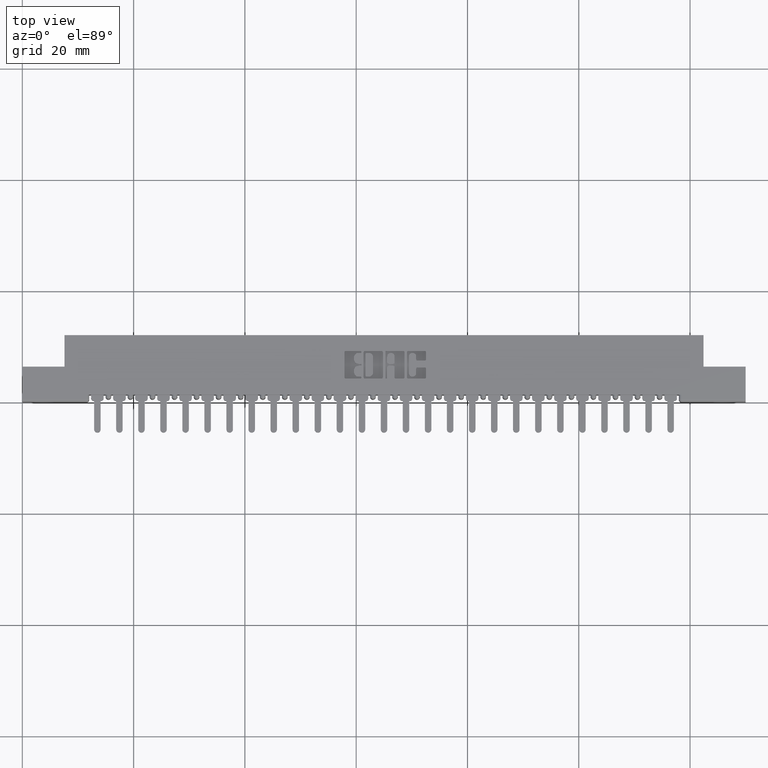
[diagram: clean part render]
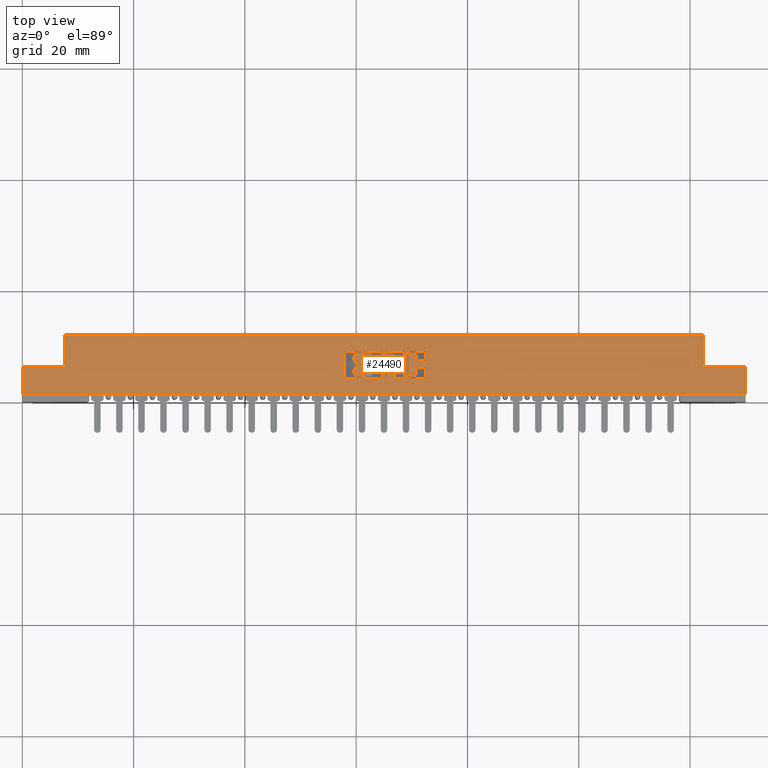
[diagram: same view with one face highlighted and labeled with its STEP entity id]
A machine part, top view. The second image highlights one B-rep face of the part: STEP entity #24490.
In plain terms, the highlighted planar face has unit normal (0, 0, -1).
Its self-contained STEP definition (entity closure, byte-faithful):
#127 = DIRECTION ( 'NONE',  ( 0.0000000000000000000, 1.000000000000000000, -0.0000000000000000000 ) ) ;
#218 = LINE ( 'NONE', #8564, #22760 ) ;
#297 = VECTOR ( 'NONE', #11871, 39.37007874015748143 ) ;
#372 = LINE ( 'NONE', #17063, #566 ) ;
#403 = CIRCLE ( 'NONE', #18350, 0.009815670203841039831 ) ;
#428 = DIRECTION ( 'NONE',  ( -0.0000000000000000000, 0.0000000000000000000, 1.000000000000000000 ) ) ;
#464 = CARTESIAN_POINT ( 'NONE',  ( 2.378637060005125647, 0.3464147637527356105, 0.0000000000000000000 ) ) ;
#505 = AXIS2_PLACEMENT_3D ( 'NONE', #16537, #16271, #14345 ) ;
#513 = EDGE_CURVE ( 'NONE', #3758, #7569, #22223, .T. ) ;
#566 = VECTOR ( 'NONE', #4989, 39.37007874015748143 ) ;
#579 = LINE ( 'NONE', #23182, #14841 ) ;
#616 = LINE ( 'NONE', #3066, #4626 ) ;
#633 = ORIENTED_EDGE ( 'NONE', *, *, #26675, .F. ) ;
#635 = ORIENTED_EDGE ( 'NONE', *, *, #22677, .F. ) ;
#669 = CARTESIAN_POINT ( 'NONE',  ( 2.786478156973165810, 0.3007718973050451661, 0.0000000000000000000 ) ) ;
#686 = VERTEX_POINT ( 'NONE', #22616 ) ;
#697 = VERTEX_POINT ( 'NONE', #23793 ) ;
#830 = ORIENTED_EDGE ( 'NONE', *, *, #17737, .F. ) ;
#832 = CARTESIAN_POINT ( 'NONE',  ( 2.845862961706167038, 0.2909562271012334222, 0.0000000000000000000 ) ) ;
#850 = CARTESIAN_POINT ( 'NONE',  ( 2.720222383097458341, 0.0000000000000000000, 0.0000000000000000000 ) ) ;
#867 = CIRCLE ( 'NONE', #9592, 0.009815670203806891800 ) ;
#872 = ORIENTED_EDGE ( 'NONE', *, *, #6992, .F. ) ;
#908 = ORIENTED_EDGE ( 'NONE', *, *, #4359, .F. ) ;
#921 = VECTOR ( 'NONE', #25622, 39.37007874015748143 ) ;
#950 = AXIS2_PLACEMENT_3D ( 'NONE', #19112, #4846, #10755 ) ;
#983 = CARTESIAN_POINT ( 'NONE',  ( 2.347226915352909504, 0.3002811137948582787, 0.0000000000000000000 ) ) ;
#1137 = CARTESIAN_POINT ( 'NONE',  ( 5.118000000000000327, 0.4729999999999999760, 0.0000000000000000000 ) ) ;
#1246 = EDGE_LOOP ( 'NONE', ( #2624, #13472, #1384, #12116, #25518, #9417, #25044, #9213, #21227, #16968, #872, #10174, #17856, #18771, #11644, #20403, #830, #25390, #24439, #11523, #3526 ) ) ;
#1251 = DIRECTION ( 'NONE',  ( 1.000000000000000000, 0.0000000000000000000, 0.0000000000000000000 ) ) ;
#1384 = ORIENTED_EDGE ( 'NONE', *, *, #2622, .T. ) ;
#1387 = VECTOR ( 'NONE', #18112, 39.37007874015748143 ) ;
#1509 = LINE ( 'NONE', #24108, #19351 ) ;
#1580 = AXIS2_PLACEMENT_3D ( 'NONE', #15243, #23599, #4807 ) ;
#1596 = VERTEX_POINT ( 'NONE', #464 ) ;
#1629 = AXIS2_PLACEMENT_3D ( 'NONE', #20973, #18532, #23151 ) ;
#1635 = CARTESIAN_POINT ( 'NONE',  ( 2.693229290037010504, 0.1736589681657807471, 0.0000000000000000000 ) ) ;
#1637 = CARTESIAN_POINT ( 'NONE',  ( 2.567588711428331116, 0.0000000000000000000, 0.0000000000000000000 ) ) ;
#1648 = DIRECTION ( 'NONE',  ( 1.000000000000000000, 0.0000000000000000000, 0.0000000000000000000 ) ) ;
#1701 = DIRECTION ( 'NONE',  ( -0.0000000000000000000, 0.0000000000000000000, 1.000000000000000000 ) ) ;
#1722 = CARTESIAN_POINT ( 'NONE',  ( 2.424770709962976056, 0.1736589681657899065, 0.0000000000000000000 ) ) ;
#1742 = VERTEX_POINT ( 'NONE', #26466 ) ;
#1744 = CARTESIAN_POINT ( 'NONE',  ( 2.424770709963010251, 0.3601567020380510020, 0.0000000000000000000 ) ) ;
#1859 = CARTESIAN_POINT ( 'NONE',  ( 0.0000000000000000000, 0.2433502266127574865, 0.0000000000000000000 ) ) ;
#1870 = EDGE_LOOP ( 'NONE', ( #4833, #908, #8883, #6636, #20383, #14741, #9746, #24106 ) ) ;
#1873 = ORIENTED_EDGE ( 'NONE', *, *, #5727, .F. ) ;
#1882 = CARTESIAN_POINT ( 'NONE',  ( 2.347226915352927712, 0.2089953808994903239, 0.0000000000000000000 ) ) ;
#1886 = EDGE_CURVE ( 'NONE', #9403, #24726, #403, .T. ) ;
#1930 = ORIENTED_EDGE ( 'NONE', *, *, #2125, .F. ) ;
#1942 = VECTOR ( 'NONE', #21410, 39.37007874015748143 ) ;
#2015 = DIRECTION ( 'NONE',  ( 1.000000000000000000, 0.0000000000000000000, 0.0000000000000000000 ) ) ;
#2115 = DIRECTION ( 'NONE',  ( -1.000000000000000000, -3.427012734660361250E-14, 0.0000000000000000000 ) ) ;
#2125 = EDGE_CURVE ( 'NONE', #11922, #9415, #10830, .T. ) ;
#2158 = AXIS2_PLACEMENT_3D ( 'NONE', #12538, #6646, #15000 ) ;
#2174 = EDGE_CURVE ( 'NONE', #21820, #26719, #13287, .T. ) ;
#2197 = CARTESIAN_POINT ( 'NONE',  ( 2.392133606415414615, 0.1775852362473101520, 0.0000000000000000000 ) ) ;
#2391 = EDGE_CURVE ( 'NONE', #8670, #18569, #21749, .T. ) ;
#2433 = CARTESIAN_POINT ( 'NONE',  ( 2.693229290037014056, 0.3601567020380065376, 0.0000000000000000000 ) ) ;
#2459 = ORIENTED_EDGE ( 'NONE', *, *, #16113, .F. ) ;
#2509 = VECTOR ( 'NONE', #13173, 39.37007874015748143 ) ;
#2551 = VECTOR ( 'NONE', #9535, 39.37007874015748143 ) ;
#2588 = AXIS2_PLACEMENT_3D ( 'NONE', #6134, #23120, #4088 ) ;
#2622 = EDGE_CURVE ( 'NONE', #8324, #1742, #17345, .T. ) ;
#2624 = ORIENTED_EDGE ( 'NONE', *, *, #25392, .T. ) ;
#2659 = DIRECTION ( 'NONE',  ( 1.000000000000000000, 0.0000000000000000000, 0.0000000000000000000 ) ) ;
#2672 = CARTESIAN_POINT ( 'NONE',  ( 2.278026440416115239, 0.1736589681657899065, 0.0000000000000000000 ) ) ;
#2681 = LINE ( 'NONE', #14732, #8411 ) ;
#2697 = CARTESIAN_POINT ( 'NONE',  ( 2.633844485303985294, 0.1736589681657877970, 0.0000000000000000000 ) ) ;
#2758 = CARTESIAN_POINT ( 'NONE',  ( -1.072942192933997188E-15, 0.1638432979619699470, 0.0000000000000000000 ) ) ;
#2760 = EDGE_CURVE ( 'NONE', #16254, #8670, #16504, .T. ) ;
#2767 = VECTOR ( 'NONE', #2659, 39.37007874015748143 ) ;
#2791 = EDGE_LOOP ( 'NONE', ( #7726, #2459, #6183, #24380, #633, #22629, #7140, #24684 ) ) ;
#2818 = DIRECTION ( 'NONE',  ( -1.000000000000000000, 0.0000000000000000000, 0.0000000000000000000 ) ) ;
#2850 = DIRECTION ( 'NONE',  ( -0.0000000000000000000, 0.0000000000000000000, 1.000000000000000000 ) ) ;
#2877 = VERTEX_POINT ( 'NONE', #25782 ) ;
#2914 = AXIS2_PLACEMENT_3D ( 'NONE', #18724, #20369, #12539 ) ;
#2924 = VECTOR ( 'NONE', #5045, 39.37007874015748143 ) ;
#2941 = CIRCLE ( 'NONE', #1629, 0.009815670203841313918 ) ;
#2951 = CIRCLE ( 'NONE', #9519, 0.03141014465221592805 ) ;
#3054 = ORIENTED_EDGE ( 'NONE', *, *, #8210, .F. ) ;
#3066 = CARTESIAN_POINT ( 'NONE',  ( 0.0000000000000000000, 0.3601567020380326833, 0.0000000000000000000 ) ) ;
#3179 = AXIS2_PLACEMENT_3D ( 'NONE', #12046, #13563, #21911 ) ;
#3186 = CARTESIAN_POINT ( 'NONE',  ( 2.392133606535351564, 0.3532857328953861731, 0.0000000000000000000 ) ) ;
#3372 = AXIS2_PLACEMENT_3D ( 'NONE', #22459, #10127, #18509 ) ;
#3381 = CARTESIAN_POINT ( 'NONE',  ( -0.0000000000000000000, 0.3601567020380065376, 0.0000000000000000000 ) ) ;
#3526 = ORIENTED_EDGE ( 'NONE', *, *, #15092, .F. ) ;
#3545 = CARTESIAN_POINT ( 'NONE',  ( 2.567588711428331116, 0.1707142671046479043, 0.0000000000000000000 ) ) ;
#3577 = VERTEX_POINT ( 'NONE', #832 ) ;
#3621 = EDGE_CURVE ( 'NONE', #5722, #26927, #17535, .T. ) ;
#3721 = ORIENTED_EDGE ( 'NONE', *, *, #26658, .F. ) ;
#3758 = VERTEX_POINT ( 'NONE', #20406 ) ;
#3917 = CARTESIAN_POINT ( 'NONE',  ( 2.278026440416115239, 0.3503410318342100038, 0.0000000000000000000 ) ) ;
#3923 = DIRECTION ( 'NONE',  ( -1.000000000000000000, 0.0000000000000000000, -0.0000000000000000000 ) ) ;
#4012 = VECTOR ( 'NONE', #11540, 39.37007874015748143 ) ;
#4088 = DIRECTION ( 'NONE',  ( 1.000000000000000000, 0.0000000000000000000, 0.0000000000000000000 ) ) ;
#4150 = CARTESIAN_POINT ( 'NONE',  ( 2.633844485303985294, 0.2453133606535433664, 0.0000000000000000000 ) ) ;
#4155 = CARTESIAN_POINT ( 'NONE',  ( -0.0000000000000000000, 0.1638432979619831309, 0.0000000000000000000 ) ) ;
#4258 = AXIS2_PLACEMENT_3D ( 'NONE', #16306, #20547, #16173 ) ;
#4289 = ORIENTED_EDGE ( 'NONE', *, *, #20449, .T. ) ;
#4290 = CARTESIAN_POINT ( 'NONE',  ( 2.703044960240806649, 0.1736589681657807471, 0.0000000000000000000 ) ) ;
#4359 = EDGE_CURVE ( 'NONE', #6036, #11103, #16227, .T. ) ;
#4388 = DIRECTION ( 'NONE',  ( 1.000000000000000000, 0.0000000000000000000, 0.0000000000000000000 ) ) ;
#4424 = ORIENTED_EDGE ( 'NONE', *, *, #2391, .F. ) ;
#4492 = VERTEX_POINT ( 'NONE', #20863 ) ;
#4543 = DIRECTION ( 'NONE',  ( -0.0000000000000000000, 0.0000000000000000000, 1.000000000000000000 ) ) ;
#4617 = EDGE_CURVE ( 'NONE', #7848, #9403, #13442, .T. ) ;
#4626 = VECTOR ( 'NONE', #15275, 39.37007874015748143 ) ;
#4634 = VERTEX_POINT ( 'NONE', #13041 ) ;
#4658 = EDGE_LOOP ( 'NONE', ( #25884, #14639, #4424, #21217, #13207, #20525, #5623, #1930, #7465, #6350, #21824, #1873, #18077, #23209, #25398, #14265, #11751, #635, #13956, #3054 ) ) ;
#4680 = CIRCLE ( 'NONE', #24400, 0.009815670203803066735 ) ;
#4691 = VERTEX_POINT ( 'NONE', #4937 ) ;
#4706 = DIRECTION ( 'NONE',  ( 0.0000000000000000000, -1.000000000000000000, 0.0000000000000000000 ) ) ;
#4716 = EDGE_CURVE ( 'NONE', #5220, #11922, #12998, .T. ) ;
#4758 = EDGE_CURVE ( 'NONE', #19087, #13783, #7768, .T. ) ;
#4807 = DIRECTION ( 'NONE',  ( 1.000000000000000000, 0.0000000000000000000, 0.0000000000000000000 ) ) ;
#4815 = CARTESIAN_POINT ( 'NONE',  ( 2.591146319917450036, 0.2551290308573486154, 0.0000000000000000000 ) ) ;
#4833 = ORIENTED_EDGE ( 'NONE', *, *, #9372, .F. ) ;
#4846 = DIRECTION ( 'NONE',  ( -0.0000000000000000000, 0.0000000000000000000, 1.000000000000000000 ) ) ;
#4935 = LINE ( 'NONE', #2758, #24646 ) ;
#4937 = CARTESIAN_POINT ( 'NONE',  ( 2.643660155507785881, 0.1638432979619845187, 0.0000000000000000000 ) ) ;
#4989 = DIRECTION ( 'NONE',  ( 0.0000000000000000000, 1.000000000000000000, -0.0000000000000000000 ) ) ;
#4998 = DIRECTION ( 'NONE',  ( 1.000000000000000000, 0.0000000000000000000, 0.0000000000000000000 ) ) ;
#5045 = DIRECTION ( 'NONE',  ( 0.0000000000000000000, -1.000000000000000000, 0.0000000000000000000 ) ) ;
#5064 = DIRECTION ( 'NONE',  ( 1.000000000000000000, 0.0000000000000000000, 0.0000000000000000000 ) ) ;
#5072 = VECTOR ( 'NONE', #22928, 39.37007874015748143 ) ;
#5106 = CIRCLE ( 'NONE', #11684, 0.009815670203797057652 ) ;
#5151 = CARTESIAN_POINT ( 'NONE',  ( 2.392133606535335577, 0.1707142671046479043, 0.0000000000000000000 ) ) ;
#5220 = VERTEX_POINT ( 'NONE', #9830 ) ;
#5275 = DIRECTION ( 'NONE',  ( -0.0000000000000000000, 0.0000000000000000000, 1.000000000000000000 ) ) ;
#5287 = DIRECTION ( 'NONE',  ( 1.000000000000000000, 0.0000000000000000000, 0.0000000000000000000 ) ) ;
#5311 = CARTESIAN_POINT ( 'NONE',  ( 2.392133606535351564, 0.3464147637527356105, 0.0000000000000000000 ) ) ;
#5328 = DIRECTION ( 'NONE',  ( -0.0000000000000000000, 1.000000000000000000, -0.0000000000000000000 ) ) ;
#5344 = CARTESIAN_POINT ( 'NONE',  ( 0.0000000000000000000, 0.05099999999999999672, 0.0000000000000000000 ) ) ;
#5430 = DIRECTION ( 'NONE',  ( 0.0000000000000000000, -1.000000000000000000, 0.0000000000000000000 ) ) ;
#5463 = CARTESIAN_POINT ( 'NONE',  ( 2.855678631909940535, 0.1736589681657829121, 0.0000000000000000000 ) ) ;
#5476 = VERTEX_POINT ( 'NONE', #2697 ) ;
#5518 = CARTESIAN_POINT ( 'NONE',  ( 2.703044960240806649, 0.3503410318342009555, 0.0000000000000000000 ) ) ;
#5623 = ORIENTED_EDGE ( 'NONE', *, *, #15512, .T. ) ;
#5696 = CARTESIAN_POINT ( 'NONE',  ( 2.786478156973179132, 0.2038421540424529277, 0.0000000000000000000 ) ) ;
#5701 = CARTESIAN_POINT ( 'NONE',  ( -2.111779678674402700E-14, 0.1775852362470256851, 0.0000000000000000000 ) ) ;
#5722 = VERTEX_POINT ( 'NONE', #11732 ) ;
#5725 = EDGE_CURVE ( 'NONE', #16254, #7569, #9040, .T. ) ;
#5727 = EDGE_CURVE ( 'NONE', #25754, #17994, #23923, .T. ) ;
#6036 = VERTEX_POINT ( 'NONE', #23445 ) ;
#6134 = CARTESIAN_POINT ( 'NONE',  ( 2.845862961706134175, 0.1736589681657899065, 0.0000000000000000000 ) ) ;
#6183 = ORIENTED_EDGE ( 'NONE', *, *, #4758, .F. ) ;
#6207 = CARTESIAN_POINT ( 'NONE',  ( 2.581330649713647230, 0.2453133606535455313, 0.0000000000000000000 ) ) ;
#6210 = DIRECTION ( 'NONE',  ( -0.0000000000000000000, 0.0000000000000000000, 1.000000000000000000 ) ) ;
#6238 = DIRECTION ( 'NONE',  ( 0.0000000000000000000, 0.0000000000000000000, -1.000000000000000000 ) ) ;
#6271 = EDGE_CURVE ( 'NONE', #2877, #8734, #2941, .T. ) ;
#6313 = VERTEX_POINT ( 'NONE', #16717 ) ;
#6345 = EDGE_CURVE ( 'NONE', #4492, #20955, #22884, .T. ) ;
#6350 = ORIENTED_EDGE ( 'NONE', *, *, #26615, .F. ) ;
#6488 = DIRECTION ( 'NONE',  ( 1.000000000000000000, 0.0000000000000000000, 0.0000000000000000000 ) ) ;
#6565 = ORIENTED_EDGE ( 'NONE', *, *, #6653, .F. ) ;
#6572 = DIRECTION ( 'NONE',  ( 1.000000000000000000, 0.0000000000000000000, 0.0000000000000000000 ) ) ;
#6611 = CARTESIAN_POINT ( 'NONE',  ( 2.845862961706131955, 0.3503410318342108920, 0.0000000000000000000 ) ) ;
#6636 = ORIENTED_EDGE ( 'NONE', *, *, #3621, .T. ) ;
#6646 = DIRECTION ( 'NONE',  ( -0.0000000000000000000, 0.0000000000000000000, 1.000000000000000000 ) ) ;
#6653 = EDGE_CURVE ( 'NONE', #6313, #26719, #12587, .T. ) ;
#6697 = CARTESIAN_POINT ( 'NONE',  ( 2.550411288571669211, 0.1736589681657899065, 0.0000000000000000000 ) ) ;
#6992 = EDGE_CURVE ( 'NONE', #12548, #20005, #13651, .T. ) ;
#7005 = EDGE_CURVE ( 'NONE', #20955, #26927, #18056, .T. ) ;
#7067 = CARTESIAN_POINT ( 'NONE',  ( 2.540595618367828212, 0.3503410318342098928, 0.0000000000000000000 ) ) ;
#7140 = ORIENTED_EDGE ( 'NONE', *, *, #1886, .F. ) ;
#7262 = CARTESIAN_POINT ( 'NONE',  ( 2.347226915352909504, 0.0000000000000000000, 0.0000000000000000000 ) ) ;
#7332 = CARTESIAN_POINT ( 'NONE',  ( 0.0000000000000000000, 0.2688709691426837689, 0.0000000000000000000 ) ) ;
#7434 = CARTESIAN_POINT ( 'NONE',  ( 2.399004575677999629, 0.3532857328953861731, 0.0000000000000000000 ) ) ;
#7465 = ORIENTED_EDGE ( 'NONE', *, *, #4716, .F. ) ;
#7543 = LINE ( 'NONE', #16191, #1387 ) ;
#7569 = VERTEX_POINT ( 'NONE', #23331 ) ;
#7674 = DIRECTION ( 'NONE',  ( -0.0000000000000000000, 0.0000000000000000000, 1.000000000000000000 ) ) ;
#7704 = VERTEX_POINT ( 'NONE', #3545 ) ;
#7726 = ORIENTED_EDGE ( 'NONE', *, *, #23150, .F. ) ;
#7764 = CARTESIAN_POINT ( 'NONE',  ( 0.0000000000000000000, 0.4729999999999999760, 0.0000000000000000000 ) ) ;
#7768 = CIRCLE ( 'NONE', #23064, 0.009815670203806891800 ) ;
#7775 = DIRECTION ( 'NONE',  ( 1.000000000000000000, 0.0000000000000000000, 0.0000000000000000000 ) ) ;
#7780 = EDGE_CURVE ( 'NONE', #21882, #4492, #26559, .T. ) ;
#7847 = EDGE_CURVE ( 'NONE', #21648, #25754, #26198, .T. ) ;
#7848 = VERTEX_POINT ( 'NONE', #22726 ) ;
#7866 = CARTESIAN_POINT ( 'NONE',  ( 0.0000000000000000000, 0.2499999999999999722, 0.0000000000000000000 ) ) ;
#7888 = DIRECTION ( 'NONE',  ( 0.0000000000000000000, 1.000000000000000000, -0.0000000000000000000 ) ) ;
#7926 = DIRECTION ( 'NONE',  ( -0.0000000000000000000, 0.0000000000000000000, 1.000000000000000000 ) ) ;
#8210 = EDGE_CURVE ( 'NONE', #21031, #686, #579, .T. ) ;
#8214 = ORIENTED_EDGE ( 'NONE', *, *, #18807, .T. ) ;
#8284 = CARTESIAN_POINT ( 'NONE',  ( 2.624028815100187817, 0.2453133606535527200, 0.0000000000000000000 ) ) ;
#8312 = EDGE_CURVE ( 'NONE', #19931, #697, #867, .T. ) ;
#8324 = VERTEX_POINT ( 'NONE', #983 ) ;
#8380 = EDGE_CURVE ( 'NONE', #8324, #13312, #21798, .T. ) ;
#8411 = VECTOR ( 'NONE', #23086, 39.37007874015748143 ) ;
#8463 = CIRCLE ( 'NONE', #20734, 0.006870969142648433205 ) ;
#8535 = CARTESIAN_POINT ( 'NONE',  ( -8.743304377293857531E-15, 0.2551290308572597976, 0.0000000000000000000 ) ) ;
#8564 = CARTESIAN_POINT ( 'NONE',  ( 2.550411288571669211, 0.0000000000000000000, 0.0000000000000000000 ) ) ;
#8670 = VERTEX_POINT ( 'NONE', #669 ) ;
#8705 = VERTEX_POINT ( 'NONE', #5311 ) ;
#8734 = VERTEX_POINT ( 'NONE', #17517 ) ;
#8768 = DIRECTION ( 'NONE',  ( 1.000000000000000000, 0.0000000000000000000, 0.0000000000000000000 ) ) ;
#8842 = CARTESIAN_POINT ( 'NONE',  ( 2.414955039759169253, 0.1736589681657899065, 0.0000000000000000000 ) ) ;
#8883 = ORIENTED_EDGE ( 'NONE', *, *, #17944, .F. ) ;
#9003 = VECTOR ( 'NONE', #127, 39.37007874015748143 ) ;
#9040 = CIRCLE ( 'NONE', #17346, 0.02625691779517339702 ) ;
#9046 = VECTOR ( 'NONE', #2115, 39.37007874015748143 ) ;
#9054 = CARTESIAN_POINT ( 'NONE',  ( 2.287842110619922487, 0.1736589681657899065, 0.0000000000000000000 ) ) ;
#9209 = DIRECTION ( 'NONE',  ( -0.0000000000000000000, 0.0000000000000000000, 1.000000000000000000 ) ) ;
#9213 = ORIENTED_EDGE ( 'NONE', *, *, #17890, .T. ) ;
#9244 = CIRCLE ( 'NONE', #17115, 0.006870969142662365636 ) ;
#9259 = DIRECTION ( 'NONE',  ( -1.000000000000000000, -1.189163988687022540E-13, 0.0000000000000000000 ) ) ;
#9318 = VERTEX_POINT ( 'NONE', #3917 ) ;
#9324 = CARTESIAN_POINT ( 'NONE',  ( 2.845862961706156380, 0.2433502266127574865, 0.0000000000000000000 ) ) ;
#9372 = EDGE_CURVE ( 'NONE', #11103, #20992, #14061, .T. ) ;
#9403 = VERTEX_POINT ( 'NONE', #1744 ) ;
#9415 = VERTEX_POINT ( 'NONE', #5696 ) ;
#9417 = ORIENTED_EDGE ( 'NONE', *, *, #10828, .F. ) ;
#9519 = AXIS2_PLACEMENT_3D ( 'NONE', #23157, #428, #6572 ) ;
#9535 = DIRECTION ( 'NONE',  ( 1.000000000000000000, 0.0000000000000000000, 0.0000000000000000000 ) ) ;
#9537 = CARTESIAN_POINT ( 'NONE',  ( 2.414955039759169253, 0.0000000000000000000, 0.0000000000000000000 ) ) ;
#9571 = VECTOR ( 'NONE', #18090, 39.37007874015748143 ) ;
#9592 = AXIS2_PLACEMENT_3D ( 'NONE', #20017, #24407, #1251 ) ;
#9671 = LINE ( 'NONE', #8535, #9046 ) ;
#9677 = VECTOR ( 'NONE', #12603, 39.37007874015748143 ) ;
#9681 = VERTEX_POINT ( 'NONE', #2672 ) ;
#9725 = EDGE_CURVE ( 'NONE', #16703, #12162, #616, .T. ) ;
#9746 = ORIENTED_EDGE ( 'NONE', *, *, #7780, .F. ) ;
#9759 = VERTEX_POINT ( 'NONE', #21693 ) ;
#9830 = CARTESIAN_POINT ( 'NONE',  ( 2.796293827176966840, 0.2433502266127574865, 0.0000000000000000000 ) ) ;
#9946 = PLANE ( 'NONE',  #25651 ) ;
#10058 = DIRECTION ( 'NONE',  ( -0.0000000000000000000, 0.0000000000000000000, 1.000000000000000000 ) ) ;
#10070 = EDGE_CURVE ( 'NONE', #17652, #12548, #15250, .T. ) ;
#10127 = DIRECTION ( 'NONE',  ( -0.0000000000000000000, 0.0000000000000000000, 1.000000000000000000 ) ) ;
#10174 = ORIENTED_EDGE ( 'NONE', *, *, #10070, .F. ) ;
#10304 = CARTESIAN_POINT ( 'NONE',  ( 2.378637060005109660, 0.2089953808994903239, 0.0000000000000000000 ) ) ;
#10368 = ORIENTED_EDGE ( 'NONE', *, *, #22087, .T. ) ;
#10436 = DIRECTION ( 'NONE',  ( 1.000000000000000000, 0.0000000000000000000, 0.0000000000000000000 ) ) ;
#10490 = AXIS2_PLACEMENT_3D ( 'NONE', #19544, #25210, #4388 ) ;
#10521 = LINE ( 'NONE', #1637, #9003 ) ;
#10599 = CARTESIAN_POINT ( 'NONE',  ( 2.392133606535310264, 0.2620000000000202722, 0.0000000000000000000 ) ) ;
#10755 = DIRECTION ( 'NONE',  ( 1.000000000000000000, 0.0000000000000000000, 0.0000000000000000000 ) ) ;
#10815 = LINE ( 'NONE', #17112, #19906 ) ;
#10828 = EDGE_CURVE ( 'NONE', #9759, #23414, #16582, .T. ) ;
#10830 = LINE ( 'NONE', #21112, #14300 ) ;
#10920 = CIRCLE ( 'NONE', #26663, 0.009815670203796511215 ) ;
#10990 = DIRECTION ( 'NONE',  ( 1.000000000000000000, 0.0000000000000000000, 0.0000000000000000000 ) ) ;
#11013 = AXIS2_PLACEMENT_3D ( 'NONE', #19172, #2850, #8768 ) ;
#11080 = ORIENTED_EDGE ( 'NONE', *, *, #24159, .T. ) ;
#11103 = VERTEX_POINT ( 'NONE', #24303 ) ;
#11123 = LINE ( 'NONE', #850, #921 ) ;
#11208 = VERTEX_POINT ( 'NONE', #4150 ) ;
#11221 = VERTEX_POINT ( 'NONE', #6207 ) ;
#11281 = VERTEX_POINT ( 'NONE', #18950 ) ;
#11375 = VERTEX_POINT ( 'NONE', #4815 ) ;
#11523 = ORIENTED_EDGE ( 'NONE', *, *, #15263, .F. ) ;
#11540 = DIRECTION ( 'NONE',  ( 0.0000000000000000000, 1.000000000000000000, -0.0000000000000000000 ) ) ;
#11644 = ORIENTED_EDGE ( 'NONE', *, *, #22116, .F. ) ;
#11663 = EDGE_CURVE ( 'NONE', #17994, #21033, #24042, .T. ) ;
#11669 = CARTESIAN_POINT ( 'NONE',  ( 2.733964321382818863, 0.0000000000000000000, 0.0000000000000000000 ) ) ;
#11684 = AXIS2_PLACEMENT_3D ( 'NONE', #8284, #16638, #24853 ) ;
#11732 = CARTESIAN_POINT ( 'NONE',  ( 4.820000000000000284, 0.2499999999999999722, 0.0000000000000000000 ) ) ;
#11751 = ORIENTED_EDGE ( 'NONE', *, *, #6271, .F. ) ;
#11794 = EDGE_CURVE ( 'NONE', #17454, #4634, #10920, .T. ) ;
#11838 = CARTESIAN_POINT ( 'NONE',  ( 2.287842110619938030, 0.3601567020380326833, 0.0000000000000000000 ) ) ;
#11871 = DIRECTION ( 'NONE',  ( 0.0000000000000000000, 1.000000000000000000, -0.0000000000000000000 ) ) ;
#11922 = VERTEX_POINT ( 'NONE', #15862 ) ;
#12046 = CARTESIAN_POINT ( 'NONE',  ( 2.693229290037011836, 0.3503410318342102814, 0.0000000000000000000 ) ) ;
#12116 = ORIENTED_EDGE ( 'NONE', *, *, #21290, .F. ) ;
#12149 = FACE_BOUND ( 'NONE', #1246, .T. ) ;
#12162 = VERTEX_POINT ( 'NONE', #11838 ) ;
#12241 = DIRECTION ( 'NONE',  ( 1.000000000000000000, 0.0000000000000000000, 0.0000000000000000000 ) ) ;
#12252 = VECTOR ( 'NONE', #15911, 39.37007874015748143 ) ;
#12300 = ORIENTED_EDGE ( 'NONE', *, *, #23456, .F. ) ;
#12319 = CIRCLE ( 'NONE', #505, 0.009815670203822736764 ) ;
#12431 = DIRECTION ( 'NONE',  ( 1.000000000000000000, 0.0000000000000000000, 0.0000000000000000000 ) ) ;
#12445 = ORIENTED_EDGE ( 'NONE', *, *, #24712, .T. ) ;
#12464 = CARTESIAN_POINT ( 'NONE',  ( 0.2979999999999999871, 0.2499999999999999722, 0.0000000000000000000 ) ) ;
#12498 = CIRCLE ( 'NONE', #1580, 0.006870969142657995000 ) ;
#12534 = LINE ( 'NONE', #14722, #16225 ) ;
#12538 = CARTESIAN_POINT ( 'NONE',  ( 2.392133606535310264, 0.2620000000000202722, 0.0000000000000000000 ) ) ;
#12539 = DIRECTION ( 'NONE',  ( 1.000000000000000000, 0.0000000000000000000, 0.0000000000000000000 ) ) ;
#12548 = VERTEX_POINT ( 'NONE', #2197 ) ;
#12587 = CIRCLE ( 'NONE', #16104, 0.009815670203795964777 ) ;
#12603 = DIRECTION ( 'NONE',  ( 1.000000000000000000, 0.0000000000000000000, 0.0000000000000000000 ) ) ;
#12629 = EDGE_CURVE ( 'NONE', #15919, #23687, #17897, .T. ) ;
#12654 = LINE ( 'NONE', #4155, #19330 ) ;
#12818 = CARTESIAN_POINT ( 'NONE',  ( 2.392133606535310264, 0.2688709691426837689, 0.0000000000000000000 ) ) ;
#12998 = CIRCLE ( 'NONE', #20895, 0.009815670203787768208 ) ;
#13041 = CARTESIAN_POINT ( 'NONE',  ( 2.567588711428331116, 0.3503410318342100038, 0.0000000000000000000 ) ) ;
#13135 = EDGE_LOOP ( 'NONE', ( #8214, #13947, #23778, #6565, #12445, #3721, #4289, #18420, #21242, #22507, #10368, #12300, #11080, #24678 ) ) ;
#13173 = DIRECTION ( 'NONE',  ( -1.000000000000000000, 0.0000000000000000000, 0.0000000000000000000 ) ) ;
#13190 = VERTEX_POINT ( 'NONE', #7434 ) ;
#13207 = ORIENTED_EDGE ( 'NONE', *, *, #5725, .T. ) ;
#13287 = LINE ( 'NONE', #26150, #2924 ) ;
#13305 = EDGE_CURVE ( 'NONE', #15919, #20005, #25000, .T. ) ;
#13312 = VERTEX_POINT ( 'NONE', #22774 ) ;
#13354 = AXIS2_PLACEMENT_3D ( 'NONE', #7067, #18293, #15436 ) ;
#13442 = LINE ( 'NONE', #23852, #2509 ) ;
#13472 = ORIENTED_EDGE ( 'NONE', *, *, #8380, .F. ) ;
#13563 = DIRECTION ( 'NONE',  ( -0.0000000000000000000, 0.0000000000000000000, 1.000000000000000000 ) ) ;
#13635 = CARTESIAN_POINT ( 'NONE',  ( 2.347226915352927712, 0.0000000000000000000, 0.0000000000000000000 ) ) ;
#13651 = LINE ( 'NONE', #5701, #13926 ) ;
#13653 = CARTESIAN_POINT ( 'NONE',  ( 2.845862961706168814, 0.3601567020380510020, 0.0000000000000000000 ) ) ;
#13685 = CARTESIAN_POINT ( 'NONE',  ( 2.392133606535335577, 0.1707142671046479043, 0.0000000000000000000 ) ) ;
#13783 = VERTEX_POINT ( 'NONE', #6697 ) ;
#13926 = VECTOR ( 'NONE', #9259, 39.37007874015748143 ) ;
#13947 = ORIENTED_EDGE ( 'NONE', *, *, #18461, .F. ) ;
#13956 = ORIENTED_EDGE ( 'NONE', *, *, #16617, .F. ) ;
#13990 = CARTESIAN_POINT ( 'NONE',  ( 0.2979999999999999316, 0.4729999999999999760, 0.0000000000000000000 ) ) ;
#14061 = LINE ( 'NONE', #18469, #21888 ) ;
#14187 = VERTEX_POINT ( 'NONE', #20260 ) ;
#14218 = CARTESIAN_POINT ( 'NONE',  ( 2.760221239177998775, 0.2038421540424529277, 0.0000000000000000000 ) ) ;
#14265 = ORIENTED_EDGE ( 'NONE', *, *, #14779, .F. ) ;
#14300 = VECTOR ( 'NONE', #19043, 39.37007874015748143 ) ;
#14345 = DIRECTION ( 'NONE',  ( 1.000000000000000000, 0.0000000000000000000, 0.0000000000000000000 ) ) ;
#14349 = LINE ( 'NONE', #22701, #25063 ) ;
#14418 = DIRECTION ( 'NONE',  ( -0.0000000000000000000, 0.0000000000000000000, 1.000000000000000000 ) ) ;
#14447 = CARTESIAN_POINT ( 'NONE',  ( 2.643660155507788101, 0.1736589681657877970, 0.0000000000000000000 ) ) ;
#14639 = ORIENTED_EDGE ( 'NONE', *, *, #18371, .F. ) ;
#14659 = CARTESIAN_POINT ( 'NONE',  ( 2.347226915352927712, 0.2237188862052004734, 0.0000000000000000000 ) ) ;
#14699 = DIRECTION ( 'NONE',  ( 1.000000000000000000, 0.0000000000000000000, 0.0000000000000000000 ) ) ;
#14722 = CARTESIAN_POINT ( 'NONE',  ( 2.278026440416115239, 0.0000000000000000000, 0.0000000000000000000 ) ) ;
#14723 = CIRCLE ( 'NONE', #2914, 0.009815670203803066735 ) ;
#14727 = CARTESIAN_POINT ( 'NONE',  ( 2.414955039759169253, 0.3503410318342100038, 0.0000000000000000000 ) ) ;
#14732 = CARTESIAN_POINT ( 'NONE',  ( 0.0000000000000000000, 0.2499999999999999722, 0.0000000000000000000 ) ) ;
#14741 = ORIENTED_EDGE ( 'NONE', *, *, #6345, .F. ) ;
#14779 = EDGE_CURVE ( 'NONE', #8734, #19931, #11123, .T. ) ;
#14841 = VECTOR ( 'NONE', #23728, 39.37007874015748143 ) ;
#14942 = EDGE_CURVE ( 'NONE', #21882, #20992, #7543, .T. ) ;
#14976 = DIRECTION ( 'NONE',  ( 1.000000000000000000, 0.0000000000000000000, 0.0000000000000000000 ) ) ;
#15000 = DIRECTION ( 'NONE',  ( 1.000000000000000000, 0.0000000000000000000, 0.0000000000000000000 ) ) ;
#15004 = CARTESIAN_POINT ( 'NONE',  ( 2.550411288571669211, 0.3503410318342100038, 0.0000000000000000000 ) ) ;
#15060 = DIRECTION ( 'NONE',  ( -0.0000000000000000000, 1.000000000000000000, -0.0000000000000000000 ) ) ;
#15077 = CARTESIAN_POINT ( 'NONE',  ( 2.720222383097458341, 0.1736589681657899065, 0.0000000000000000000 ) ) ;
#15092 = EDGE_CURVE ( 'NONE', #1596, #8705, #22998, .T. ) ;
#15111 = CARTESIAN_POINT ( 'NONE',  ( -0.0000000000000000000, 0.2551290308573567756, 0.0000000000000000000 ) ) ;
#15243 = CARTESIAN_POINT ( 'NONE',  ( 2.574459680570987175, 0.1707142671046479043, 0.0000000000000000000 ) ) ;
#15250 = CIRCLE ( 'NONE', #20925, 0.006870969142662365636 ) ;
#15263 = EDGE_CURVE ( 'NONE', #8705, #13190, #16704, .T. ) ;
#15275 = DIRECTION ( 'NONE',  ( -1.000000000000000000, 0.0000000000000000000, 0.0000000000000000000 ) ) ;
#15370 = DIRECTION ( 'NONE',  ( -0.0000000000000000000, 0.0000000000000000000, 1.000000000000000000 ) ) ;
#15436 = DIRECTION ( 'NONE',  ( 1.000000000000000000, 0.0000000000000000000, 0.0000000000000000000 ) ) ;
#15512 = EDGE_CURVE ( 'NONE', #3758, #9415, #18477, .T. ) ;
#15702 = VERTEX_POINT ( 'NONE', #2433 ) ;
#15862 = CARTESIAN_POINT ( 'NONE',  ( 2.786478156973179132, 0.2335345564089686132, 0.0000000000000000000 ) ) ;
#15884 = DIRECTION ( 'NONE',  ( -0.0000000000000000000, 0.0000000000000000000, 1.000000000000000000 ) ) ;
#15898 = AXIS2_PLACEMENT_3D ( 'NONE', #10599, #25255, #6488 ) ;
#15911 = DIRECTION ( 'NONE',  ( 0.0000000000000000000, 1.000000000000000000, -0.0000000000000000000 ) ) ;
#15919 = VERTEX_POINT ( 'NONE', #1882 ) ;
#15990 = CARTESIAN_POINT ( 'NONE',  ( 2.399004575677997853, 0.1707142671046479043, 0.0000000000000000000 ) ) ;
#16003 = VERTEX_POINT ( 'NONE', #8842 ) ;
#16014 = DIRECTION ( 'NONE',  ( 1.000000000000000000, 0.0000000000000000000, 0.0000000000000000000 ) ) ;
#16077 = EDGE_CURVE ( 'NONE', #9318, #9681, #12534, .T. ) ;
#16104 = AXIS2_PLACEMENT_3D ( 'NONE', #1635, #15884, #26693 ) ;
#16113 = EDGE_CURVE ( 'NONE', #13783, #17817, #218, .T. ) ;
#16126 = DIRECTION ( 'NONE',  ( -1.000000000000000000, -0.0000000000000000000, -7.017285087388212923E-23 ) ) ;
#16173 = DIRECTION ( 'NONE',  ( 1.000000000000000000, 0.0000000000000000000, 0.0000000000000000000 ) ) ;
#16191 = CARTESIAN_POINT ( 'NONE',  ( 0.0000000000000000000, 0.4729999999999999760, 0.0000000000000000000 ) ) ;
#16225 = VECTOR ( 'NONE', #4706, 39.37007874015748143 ) ;
#16227 = LINE ( 'NONE', #1137, #16493 ) ;
#16254 = VERTEX_POINT ( 'NONE', #19644 ) ;
#16271 = DIRECTION ( 'NONE',  ( -0.0000000000000000000, 0.0000000000000000000, 1.000000000000000000 ) ) ;
#16273 = AXIS2_PLACEMENT_3D ( 'NONE', #10304, #1701, #12241 ) ;
#16306 = CARTESIAN_POINT ( 'NONE',  ( 2.845862961706167038, 0.3007718973050385602, 0.0000000000000000000 ) ) ;
#16317 = VECTOR ( 'NONE', #7775, 39.37007874015748143 ) ;
#16493 = VECTOR ( 'NONE', #24568, 39.37007874015748143 ) ;
#16504 = LINE ( 'NONE', #20884, #5072 ) ;
#16503 = VECTOR ( 'NONE', #18853, 39.37007874015748143 ) ;
#16518 = AXIS2_PLACEMENT_3D ( 'NONE', #1722, #10058, #14699 ) ;
#16537 = CARTESIAN_POINT ( 'NONE',  ( 2.287842110619938030, 0.3503410318342100038, 0.0000000000000000000 ) ) ;
#16582 = CIRCLE ( 'NONE', #2158, 0.006870969142663458512 ) ;
#16608 = CARTESIAN_POINT ( 'NONE',  ( 2.577404381632127706, 0.3503410318342100038, 0.0000000000000000000 ) ) ;
#16617 = EDGE_CURVE ( 'NONE', #686, #24357, #22354, .T. ) ;
#16638 = DIRECTION ( 'NONE',  ( -0.0000000000000000000, 0.0000000000000000000, 1.000000000000000000 ) ) ;
#16700 = CARTESIAN_POINT ( 'NONE',  ( 2.796293827176977942, 0.2909562271012335888, 0.0000000000000000000 ) ) ;
#16703 = VERTEX_POINT ( 'NONE', #17566 ) ;
#16704 = CIRCLE ( 'NONE', #11013, 0.006870969142648433205 ) ;
#16717 = CARTESIAN_POINT ( 'NONE',  ( 2.693229290037010504, 0.1638432979619845187, 0.0000000000000000000 ) ) ;
#16796 = CARTESIAN_POINT ( 'NONE',  ( 2.378637060005083903, 0.2551290308573567756, 0.0000000000000000000 ) ) ;
#16880 = VECTOR ( 'NONE', #5328, 39.37007874015748143 ) ;
#16913 = DIRECTION ( 'NONE',  ( 0.0000000000000000000, 1.000000000000000000, -0.0000000000000000000 ) ) ;
#16955 = CIRCLE ( 'NONE', #16518, 0.009815670203806891800 ) ;
#16968 = ORIENTED_EDGE ( 'NONE', *, *, #13305, .T. ) ;
#17063 = CARTESIAN_POINT ( 'NONE',  ( 2.633844485303985294, 0.0000000000000000000, 0.0000000000000000000 ) ) ;
#17112 = CARTESIAN_POINT ( 'NONE',  ( 0.0000000000000000000, 0.3601567020380510020, 0.0000000000000000000 ) ) ;
#17115 = AXIS2_PLACEMENT_3D ( 'NONE', #5151, #24073, #5287 ) ;
#17345 = CIRCLE ( 'NONE', #23046, 0.03141014465217440571 ) ;
#17346 = AXIS2_PLACEMENT_3D ( 'NONE', #20091, #5275, #4998 ) ;
#17351 = CARTESIAN_POINT ( 'NONE',  ( 2.577404381632127706, 0.3601567020380065376, 0.0000000000000000000 ) ) ;
#17454 = VERTEX_POINT ( 'NONE', #17351 ) ;
#17517 = CARTESIAN_POINT ( 'NONE',  ( 2.720222383097458341, 0.3503410318342100038, 0.0000000000000000000 ) ) ;
#17535 = LINE ( 'NONE', #19718, #16880 ) ;
#17566 = CARTESIAN_POINT ( 'NONE',  ( 2.392133606535351564, 0.3601567020380326833, 0.0000000000000000000 ) ) ;
#17633 = CARTESIAN_POINT ( 'NONE',  ( 0.0000000000000000000, 0.4729999999999999760, 0.0000000000000000000 ) ) ;
#17651 = EDGE_CURVE ( 'NONE', #19426, #17652, #9244, .T. ) ;
#17652 = VERTEX_POINT ( 'NONE', #15990 ) ;
#17737 = EDGE_CURVE ( 'NONE', #12162, #9318, #12319, .T. ) ;
#17817 = VERTEX_POINT ( 'NONE', #15004 ) ;
#17856 = ORIENTED_EDGE ( 'NONE', *, *, #17651, .F. ) ;
#17890 = EDGE_CURVE ( 'NONE', #20288, #23687, #24579, .T. ) ;
#17897 = LINE ( 'NONE', #13635, #21032 ) ;
#17920 = DIRECTION ( 'NONE',  ( 1.000000000000000000, 0.0000000000000000000, 0.0000000000000000000 ) ) ;
#17944 = EDGE_CURVE ( 'NONE', #5722, #6036, #2681, .T. ) ;
#17994 = VERTEX_POINT ( 'NONE', #19510 ) ;
#18056 = LINE ( 'NONE', #17633, #2551 ) ;
#18077 = ORIENTED_EDGE ( 'NONE', *, *, #7847, .F. ) ;
#18090 = DIRECTION ( 'NONE',  ( 1.000000000000000000, -0.0000000000000000000, 0.0000000000000000000 ) ) ;
#18112 = DIRECTION ( 'NONE',  ( -0.0000000000000000000, -1.000000000000000000, -0.0000000000000000000 ) ) ;
#18203 = EDGE_CURVE ( 'NONE', #19265, #19087, #12654, .T. ) ;
#18217 = CARTESIAN_POINT ( 'NONE',  ( 2.581330649713647230, 0.1707142671046479043, 0.0000000000000000000 ) ) ;
#18293 = DIRECTION ( 'NONE',  ( -0.0000000000000000000, 0.0000000000000000000, 1.000000000000000000 ) ) ;
#18350 = AXIS2_PLACEMENT_3D ( 'NONE', #26993, #14418, #18660 ) ;
#18371 = EDGE_CURVE ( 'NONE', #18569, #3577, #1509, .T. ) ;
#18420 = ORIENTED_EDGE ( 'NONE', *, *, #26597, .T. ) ;
#18461 = EDGE_CURVE ( 'NONE', #21820, #15702, #19789, .T. ) ;
#18469 = CARTESIAN_POINT ( 'NONE',  ( 0.4729999999999998650, 0.05099999999999999672, 0.0000000000000000000 ) ) ;
#18477 = CIRCLE ( 'NONE', #24142, 0.02625691779517995428 ) ;
#18509 = DIRECTION ( 'NONE',  ( 1.000000000000000000, 0.0000000000000000000, 0.0000000000000000000 ) ) ;
#18532 = DIRECTION ( 'NONE',  ( -0.0000000000000000000, 0.0000000000000000000, 1.000000000000000000 ) ) ;
#18569 = VERTEX_POINT ( 'NONE', #16700 ) ;
#18660 = DIRECTION ( 'NONE',  ( 1.000000000000000000, 0.0000000000000000000, 0.0000000000000000000 ) ) ;
#18724 = CARTESIAN_POINT ( 'NONE',  ( 2.591146319917450036, 0.2453133606535455313, 0.0000000000000000000 ) ) ;
#18771 = ORIENTED_EDGE ( 'NONE', *, *, #20823, .F. ) ;
#18807 = EDGE_CURVE ( 'NONE', #17454, #15702, #22299, .T. ) ;
#18823 = DIRECTION ( 'NONE',  ( -1.000000000000000000, 0.0000000000000000000, 0.0000000000000000000 ) ) ;
#18853 = DIRECTION ( 'NONE',  ( -1.000000000000000000, 0.0000000000000000000, 0.0000000000000000000 ) ) ;
#18950 = CARTESIAN_POINT ( 'NONE',  ( 2.287842110619918934, 0.1638432979619849350, 0.0000000000000000000 ) ) ;
#19019 = EDGE_CURVE ( 'NONE', #697, #21648, #14349, .T. ) ;
#19043 = DIRECTION ( 'NONE',  ( 0.0000000000000000000, -1.000000000000000000, 0.0000000000000000000 ) ) ;
#19087 = VERTEX_POINT ( 'NONE', #21049 ) ;
#19112 = CARTESIAN_POINT ( 'NONE',  ( 2.378637060005083903, 0.2237188862052004734, 0.0000000000000000000 ) ) ;
#19172 = CARTESIAN_POINT ( 'NONE',  ( 2.392133606535351564, 0.3532857328953861731, 0.0000000000000000000 ) ) ;
#19265 = VERTEX_POINT ( 'NONE', #24045 ) ;
#19330 = VECTOR ( 'NONE', #14976, 39.37007874015748143 ) ;
#19351 = VECTOR ( 'NONE', #1648, 39.37007874015748143 ) ;
#19426 = VERTEX_POINT ( 'NONE', #24860 ) ;
#19461 = DIRECTION ( 'NONE',  ( -0.0000000000000000000, 0.0000000000000000000, 1.000000000000000000 ) ) ;
#19510 = CARTESIAN_POINT ( 'NONE',  ( 2.855678631909940535, 0.2335345564089703618, 0.0000000000000000000 ) ) ;
#19544 = CARTESIAN_POINT ( 'NONE',  ( 2.845862961706153271, 0.2335345564089703618, 0.0000000000000000000 ) ) ;
#19562 = EDGE_CURVE ( 'NONE', #20288, #9759, #21288, .T. ) ;
#19616 = EDGE_CURVE ( 'NONE', #23414, #24641, #25084, .T. ) ;
#19644 = CARTESIAN_POINT ( 'NONE',  ( 2.786478156973165810, 0.3201578454992597966, 0.0000000000000000000 ) ) ;
#19662 = LINE ( 'NONE', #7332, #23783 ) ;
#19718 = CARTESIAN_POINT ( 'NONE',  ( 4.820000000000000284, 0.2499999999999999722, 0.0000000000000000000 ) ) ;
#19755 = EDGE_CURVE ( 'NONE', #13190, #16703, #8463, .T. ) ;
#19789 = CIRCLE ( 'NONE', #3179, 0.009815670203795418339 ) ;
#19889 = CIRCLE ( 'NONE', #25553, 0.009815670203805798924 ) ;
#19906 = VECTOR ( 'NONE', #25463, 39.37007874015748143 ) ;
#19931 = VERTEX_POINT ( 'NONE', #15077 ) ;
#20005 = VERTEX_POINT ( 'NONE', #25610 ) ;
#20017 = CARTESIAN_POINT ( 'NONE',  ( 2.730038053301265144, 0.1736589681657899065, 0.0000000000000000000 ) ) ;
#20091 = CARTESIAN_POINT ( 'NONE',  ( 2.760221239177992114, 0.3201578459575294966, 0.0000000000000000000 ) ) ;
#20260 = CARTESIAN_POINT ( 'NONE',  ( 2.624028815100187817, 0.2551290308573497256, 0.0000000000000000000 ) ) ;
#20288 = VERTEX_POINT ( 'NONE', #16796 ) ;
#20369 = DIRECTION ( 'NONE',  ( -0.0000000000000000000, 0.0000000000000000000, 1.000000000000000000 ) ) ;
#20383 = ORIENTED_EDGE ( 'NONE', *, *, #7005, .F. ) ;
#20403 = ORIENTED_EDGE ( 'NONE', *, *, #16077, .F. ) ;
#20406 = CARTESIAN_POINT ( 'NONE',  ( 2.733964321382818863, 0.2038421540424529277, 0.0000000000000000000 ) ) ;
#20425 = CARTESIAN_POINT ( 'NONE',  ( -0.0000000000000000000, 0.3464147637527356105, 0.0000000000000000000 ) ) ;
#20449 = EDGE_CURVE ( 'NONE', #5476, #11208, #372, .T. ) ;
#20511 = FACE_BOUND ( 'NONE', #13135, .T. ) ;
#20525 = ORIENTED_EDGE ( 'NONE', *, *, #513, .F. ) ;
#20543 = CARTESIAN_POINT ( 'NONE',  ( 0.0000000000000000000, 0.2499999999999999722, 0.0000000000000000000 ) ) ;
#20547 = DIRECTION ( 'NONE',  ( -0.0000000000000000000, 0.0000000000000000000, 1.000000000000000000 ) ) ;
#20734 = AXIS2_PLACEMENT_3D ( 'NONE', #3186, #9209, #25922 ) ;
#20770 = FACE_BOUND ( 'NONE', #2791, .T. ) ;
#20823 = EDGE_CURVE ( 'NONE', #11281, #19426, #4935, .T. ) ;
#20863 = CARTESIAN_POINT ( 'NONE',  ( 0.2979999999999999871, 0.2499999999999999722, 0.0000000000000000000 ) ) ;
#20884 = CARTESIAN_POINT ( 'NONE',  ( 2.786478156973165810, 0.0000000000000000000, 0.0000000000000000000 ) ) ;
#20895 = AXIS2_PLACEMENT_3D ( 'NONE', #21797, #19461, #5064 ) ;
#20925 = AXIS2_PLACEMENT_3D ( 'NONE', #13685, #22176, #16014 ) ;
#20955 = VERTEX_POINT ( 'NONE', #13990 ) ;
#20973 = CARTESIAN_POINT ( 'NONE',  ( 2.730038053301299783, 0.3503410318342100038, 0.0000000000000000000 ) ) ;
#20985 = DIRECTION ( 'NONE',  ( -0.0000000000000000000, 0.0000000000000000000, 1.000000000000000000 ) ) ;
#20992 = VERTEX_POINT ( 'NONE', #5344 ) ;
#21031 = VERTEX_POINT ( 'NONE', #23997 ) ;
#21032 = VECTOR ( 'NONE', #7888, 39.37007874015748143 ) ;
#21033 = VERTEX_POINT ( 'NONE', #9324 ) ;
#21049 = CARTESIAN_POINT ( 'NONE',  ( 2.540595618367861963, 0.1638432979619831309, 0.0000000000000000000 ) ) ;
#21112 = CARTESIAN_POINT ( 'NONE',  ( 2.786478156973179132, 0.0000000000000000000, 0.0000000000000000000 ) ) ;
#21217 = ORIENTED_EDGE ( 'NONE', *, *, #2760, .F. ) ;
#21227 = ORIENTED_EDGE ( 'NONE', *, *, #12629, .F. ) ;
#21242 = ORIENTED_EDGE ( 'NONE', *, *, #24887, .T. ) ;
#21288 = LINE ( 'NONE', #15111, #2767 ) ;
#21290 = EDGE_CURVE ( 'NONE', #24641, #1742, #19662, .T. ) ;
#21349 = VECTOR ( 'NONE', #18823, 39.37007874015748143 ) ;
#21405 = DIRECTION ( 'NONE',  ( 1.000000000000000000, 6.548587621710594991E-15, 0.0000000000000000000 ) ) ;
#21410 = DIRECTION ( 'NONE',  ( 0.0000000000000000000, -1.000000000000000000, 0.0000000000000000000 ) ) ;
#21569 = CARTESIAN_POINT ( 'NONE',  ( 2.845862961706134175, 0.1638432979619831309, 0.0000000000000000000 ) ) ;
#21648 = VERTEX_POINT ( 'NONE', #21569 ) ;
#21693 = CARTESIAN_POINT ( 'NONE',  ( 2.392133606415388858, 0.2551290308573567756, 0.0000000000000000000 ) ) ;
#21749 = CIRCLE ( 'NONE', #3372, 0.009815670203811809741 ) ;
#21797 = CARTESIAN_POINT ( 'NONE',  ( 2.796293827176966840, 0.2335345564089694737, 0.0000000000000000000 ) ) ;
#21798 = LINE ( 'NONE', #7262, #12252 ) ;
#21820 = VERTEX_POINT ( 'NONE', #5518 ) ;
#21824 = ORIENTED_EDGE ( 'NONE', *, *, #11663, .F. ) ;
#21882 = VERTEX_POINT ( 'NONE', #7866 ) ;
#21888 = VECTOR ( 'NONE', #16126, 39.37007874015748143 ) ;
#21911 = DIRECTION ( 'NONE',  ( 1.000000000000000000, 0.0000000000000000000, 0.0000000000000000000 ) ) ;
#22087 = EDGE_CURVE ( 'NONE', #11221, #22857, #26882, .T. ) ;
#22099 = CIRCLE ( 'NONE', #13354, 0.009815670203841313918 ) ;
#22116 = EDGE_CURVE ( 'NONE', #9681, #11281, #19889, .T. ) ;
#22176 = DIRECTION ( 'NONE',  ( -0.0000000000000000000, 0.0000000000000000000, 1.000000000000000000 ) ) ;
#22223 = LINE ( 'NONE', #11669, #4012 ) ;
#22282 = CARTESIAN_POINT ( 'NONE',  ( 2.855678631909940535, 0.0000000000000000000, 0.0000000000000000000 ) ) ;
#22299 = LINE ( 'NONE', #3381, #16317 ) ;
#22354 = CIRCLE ( 'NONE', #24084, 0.009815670203840221042 ) ;
#22459 = CARTESIAN_POINT ( 'NONE',  ( 2.796293827176977942, 0.3007718973050451661, 0.0000000000000000000 ) ) ;
#22507 = ORIENTED_EDGE ( 'NONE', *, *, #24613, .T. ) ;
#22616 = CARTESIAN_POINT ( 'NONE',  ( 2.855678631909972065, 0.3503410318341947383, 0.0000000000000000000 ) ) ;
#22629 = ORIENTED_EDGE ( 'NONE', *, *, #24379, .F. ) ;
#22677 = EDGE_CURVE ( 'NONE', #24357, #2877, #10815, .T. ) ;
#22701 = CARTESIAN_POINT ( 'NONE',  ( -0.0000000000000000000, 0.1638432979619831309, 0.0000000000000000000 ) ) ;
#22726 = CARTESIAN_POINT ( 'NONE',  ( 2.540595618367896158, 0.3601567020380510020, 0.0000000000000000000 ) ) ;
#22760 = VECTOR ( 'NONE', #16913, 39.37007874015748143 ) ;
#22774 = CARTESIAN_POINT ( 'NONE',  ( 2.347226915352909504, 0.3150046191005197449, 0.0000000000000000000 ) ) ;
#22857 = VERTEX_POINT ( 'NONE', #18217 ) ;
#22884 = LINE ( 'NONE', #12464, #25279 ) ;
#22915 = CARTESIAN_POINT ( 'NONE',  ( 2.581330649713647230, 0.0000000000000000000, 0.0000000000000000000 ) ) ;
#22927 = LINE ( 'NONE', #1859, #21349 ) ;
#22928 = DIRECTION ( 'NONE',  ( 0.0000000000000000000, -1.000000000000000000, 0.0000000000000000000 ) ) ;
#22952 = FACE_BOUND ( 'NONE', #4658, .T. ) ;
#22998 = LINE ( 'NONE', #20425, #9677 ) ;
#23028 = VECTOR ( 'NONE', #5430, 39.37007874015748143 ) ;
#23046 = AXIS2_PLACEMENT_3D ( 'NONE', #23940, #24077, #17920 ) ;
#23064 = AXIS2_PLACEMENT_3D ( 'NONE', #26452, #7674, #26174 ) ;
#23086 = DIRECTION ( 'NONE',  ( 1.000000000000000000, -0.0000000000000000000, 0.0000000000000000000 ) ) ;
#23120 = DIRECTION ( 'NONE',  ( -0.0000000000000000000, 0.0000000000000000000, 1.000000000000000000 ) ) ;
#23150 = EDGE_CURVE ( 'NONE', #17817, #7848, #22099, .T. ) ;
#23151 = DIRECTION ( 'NONE',  ( 1.000000000000000000, 0.0000000000000000000, 0.0000000000000000000 ) ) ;
#23157 = CARTESIAN_POINT ( 'NONE',  ( 2.378637060005125647, 0.3150046191005197449, 0.0000000000000000000 ) ) ;
#23182 = CARTESIAN_POINT ( 'NONE',  ( 2.855678631909972065, 0.0000000000000000000, 0.0000000000000000000 ) ) ;
#23209 = ORIENTED_EDGE ( 'NONE', *, *, #19019, .F. ) ;
#23227 = LINE ( 'NONE', #25409, #16503 ) ;
#23329 = DIRECTION ( 'NONE',  ( 1.000000000000000000, 0.0000000000000000000, 0.0000000000000000000 ) ) ;
#23331 = CARTESIAN_POINT ( 'NONE',  ( 2.733964321382818863, 0.3201578459575294966, 0.0000000000000000000 ) ) ;
#23414 = VERTEX_POINT ( 'NONE', #23737 ) ;
#23445 = CARTESIAN_POINT ( 'NONE',  ( 5.118000000000000327, 0.2499999999999999722, 0.0000000000000000000 ) ) ;
#23456 = EDGE_CURVE ( 'NONE', #7704, #22857, #12498, .T. ) ;
#23505 = CIRCLE ( 'NONE', #4258, 0.009815670203805252486 ) ;
#23599 = DIRECTION ( 'NONE',  ( -0.0000000000000000000, 0.0000000000000000000, 1.000000000000000000 ) ) ;
#23687 = VERTEX_POINT ( 'NONE', #14659 ) ;
#23728 = DIRECTION ( 'NONE',  ( 0.0000000000000000000, 1.000000000000000000, -0.0000000000000000000 ) ) ;
#23737 = CARTESIAN_POINT ( 'NONE',  ( 2.399004575677973428, 0.2620000000000202722, 0.0000000000000000000 ) ) ;
#23778 = ORIENTED_EDGE ( 'NONE', *, *, #2174, .T. ) ;
#23783 = VECTOR ( 'NONE', #2818, 39.37007874015748143 ) ;
#23793 = CARTESIAN_POINT ( 'NONE',  ( 2.730038053301265144, 0.1638432979619831309, 0.0000000000000000000 ) ) ;
#23796 = LINE ( 'NONE', #9537, #23028 ) ;
#23852 = CARTESIAN_POINT ( 'NONE',  ( 0.0000000000000000000, 0.3601567020380510020, 0.0000000000000000000 ) ) ;
#23923 = LINE ( 'NONE', #22282, #297 ) ;
#23940 = CARTESIAN_POINT ( 'NONE',  ( 2.378637060005083903, 0.3002811137948582787, 0.0000000000000000000 ) ) ;
#23997 = CARTESIAN_POINT ( 'NONE',  ( 2.855678631909972065, 0.3007718973050385602, 0.0000000000000000000 ) ) ;
#24042 = CIRCLE ( 'NONE', #10490, 0.009815670203787221770 ) ;
#24045 = CARTESIAN_POINT ( 'NONE',  ( 2.424770709962976056, 0.1638432979619831309, 0.0000000000000000000 ) ) ;
#24073 = DIRECTION ( 'NONE',  ( -0.0000000000000000000, 0.0000000000000000000, 1.000000000000000000 ) ) ;
#24077 = DIRECTION ( 'NONE',  ( -0.0000000000000000000, 0.0000000000000000000, 1.000000000000000000 ) ) ;
#24084 = AXIS2_PLACEMENT_3D ( 'NONE', #6611, #4543, #23329 ) ;
#24106 = ORIENTED_EDGE ( 'NONE', *, *, #14942, .T. ) ;
#24108 = CARTESIAN_POINT ( 'NONE',  ( -0.0000000000000000000, 0.2909562271012335888, 0.0000000000000000000 ) ) ;
#24142 = AXIS2_PLACEMENT_3D ( 'NONE', #14218, #7926, #12431 ) ;
#24159 = EDGE_CURVE ( 'NONE', #7704, #4634, #10521, .T. ) ;
#24303 = CARTESIAN_POINT ( 'NONE',  ( 5.118000000000000327, 0.05099999999999999672, 0.0000000000000000000 ) ) ;
#24357 = VERTEX_POINT ( 'NONE', #13653 ) ;
#24379 = EDGE_CURVE ( 'NONE', #24726, #16003, #23796, .T. ) ;
#24380 = ORIENTED_EDGE ( 'NONE', *, *, #18203, .F. ) ;
#24400 = AXIS2_PLACEMENT_3D ( 'NONE', #14447, #6210, #25718 ) ;
#24407 = DIRECTION ( 'NONE',  ( -0.0000000000000000000, 0.0000000000000000000, 1.000000000000000000 ) ) ;
#24439 = ORIENTED_EDGE ( 'NONE', *, *, #19755, .F. ) ;
#24490 = ADVANCED_FACE ( 'NONE', ( #22952, #12149, #26916, #20770, #20511 ), #9946, .F. ) ;
#24568 = DIRECTION ( 'NONE',  ( -0.0000000000000000000, -1.000000000000000000, -0.0000000000000000000 ) ) ;
#24579 = CIRCLE ( 'NONE', #950, 0.03141014465215610091 ) ;
#24613 = EDGE_CURVE ( 'NONE', #11375, #11221, #14723, .T. ) ;
#24641 = VERTEX_POINT ( 'NONE', #12818 ) ;
#24646 = VECTOR ( 'NONE', #21405, 39.37007874015748143 ) ;
#24678 = ORIENTED_EDGE ( 'NONE', *, *, #11794, .F. ) ;
#24684 = ORIENTED_EDGE ( 'NONE', *, *, #4617, .F. ) ;
#24712 = EDGE_CURVE ( 'NONE', #6313, #4691, #23227, .T. ) ;
#24726 = VERTEX_POINT ( 'NONE', #14727 ) ;
#24853 = DIRECTION ( 'NONE',  ( 1.000000000000000000, 0.0000000000000000000, 0.0000000000000000000 ) ) ;
#24860 = CARTESIAN_POINT ( 'NONE',  ( 2.392133606415414615, 0.1638432979619856011, 0.0000000000000000000 ) ) ;
#24887 = EDGE_CURVE ( 'NONE', #14187, #11375, #9671, .T. ) ;
#25000 = CIRCLE ( 'NONE', #16273, 0.03141014465218178175 ) ;
#25044 = ORIENTED_EDGE ( 'NONE', *, *, #19562, .F. ) ;
#25063 = VECTOR ( 'NONE', #2015, 39.37007874015748143 ) ;
#25084 = CIRCLE ( 'NONE', #15898, 0.006870969142663458512 ) ;
#25210 = DIRECTION ( 'NONE',  ( -0.0000000000000000000, 0.0000000000000000000, 1.000000000000000000 ) ) ;
#25255 = DIRECTION ( 'NONE',  ( -0.0000000000000000000, 0.0000000000000000000, 1.000000000000000000 ) ) ;
#25279 = VECTOR ( 'NONE', #15060, 39.37007874015748143 ) ;
#25390 = ORIENTED_EDGE ( 'NONE', *, *, #9725, .F. ) ;
#25392 = EDGE_CURVE ( 'NONE', #1596, #13312, #2951, .T. ) ;
#25398 = ORIENTED_EDGE ( 'NONE', *, *, #8312, .F. ) ;
#25409 = CARTESIAN_POINT ( 'NONE',  ( 0.0000000000000000000, 0.1638432979619845187, 0.0000000000000000000 ) ) ;
#25463 = DIRECTION ( 'NONE',  ( -1.000000000000000000, 0.0000000000000000000, 0.0000000000000000000 ) ) ;
#25518 = ORIENTED_EDGE ( 'NONE', *, *, #19616, .F. ) ;
#25553 = AXIS2_PLACEMENT_3D ( 'NONE', #9054, #15370, #10990 ) ;
#25610 = CARTESIAN_POINT ( 'NONE',  ( 2.378637060005109660, 0.1775852362473085422, 0.0000000000000000000 ) ) ;
#25622 = DIRECTION ( 'NONE',  ( 0.0000000000000000000, -1.000000000000000000, 0.0000000000000000000 ) ) ;
#25651 = AXIS2_PLACEMENT_3D ( 'NONE', #7764, #6238, #3923 ) ;
#25718 = DIRECTION ( 'NONE',  ( 1.000000000000000000, 0.0000000000000000000, 0.0000000000000000000 ) ) ;
#25754 = VERTEX_POINT ( 'NONE', #5463 ) ;
#25782 = CARTESIAN_POINT ( 'NONE',  ( 2.730038053301299783, 0.3601567020380510020, 0.0000000000000000000 ) ) ;
#25884 = ORIENTED_EDGE ( 'NONE', *, *, #26898, .F. ) ;
#25922 = DIRECTION ( 'NONE',  ( 1.000000000000000000, 0.0000000000000000000, 0.0000000000000000000 ) ) ;
#26150 = CARTESIAN_POINT ( 'NONE',  ( 2.703044960240806649, 0.0000000000000000000, 0.0000000000000000000 ) ) ;
#26174 = DIRECTION ( 'NONE',  ( 1.000000000000000000, 0.0000000000000000000, 0.0000000000000000000 ) ) ;
#26198 = CIRCLE ( 'NONE', #2588, 0.009815670203806345362 ) ;
#26452 = CARTESIAN_POINT ( 'NONE',  ( 2.540595618367861963, 0.1736589681657899065, 0.0000000000000000000 ) ) ;
#26466 = CARTESIAN_POINT ( 'NONE',  ( 2.378637060005083903, 0.2688709691426837689, 0.0000000000000000000 ) ) ;
#26559 = LINE ( 'NONE', #20543, #9571 ) ;
#26597 = EDGE_CURVE ( 'NONE', #11208, #14187, #5106, .T. ) ;
#26615 = EDGE_CURVE ( 'NONE', #21033, #5220, #22927, .T. ) ;
#26658 = EDGE_CURVE ( 'NONE', #5476, #4691, #4680, .T. ) ;
#26663 = AXIS2_PLACEMENT_3D ( 'NONE', #16608, #20985, #10436 ) ;
#26675 = EDGE_CURVE ( 'NONE', #16003, #19265, #16955, .T. ) ;
#26693 = DIRECTION ( 'NONE',  ( 1.000000000000000000, 0.0000000000000000000, 0.0000000000000000000 ) ) ;
#26719 = VERTEX_POINT ( 'NONE', #4290 ) ;
#26882 = LINE ( 'NONE', #22915, #1942 ) ;
#26898 = EDGE_CURVE ( 'NONE', #3577, #21031, #23505, .T. ) ;
#26916 = FACE_OUTER_BOUND ( 'NONE', #1870, .T. ) ;
#26927 = VERTEX_POINT ( 'NONE', #26957 ) ;
#26957 = CARTESIAN_POINT ( 'NONE',  ( 4.820000000000000284, 0.4729999999999999760, 0.0000000000000000000 ) ) ;
#26993 = CARTESIAN_POINT ( 'NONE',  ( 2.424770709963010251, 0.3503410318342100038, 0.0000000000000000000 ) ) ;